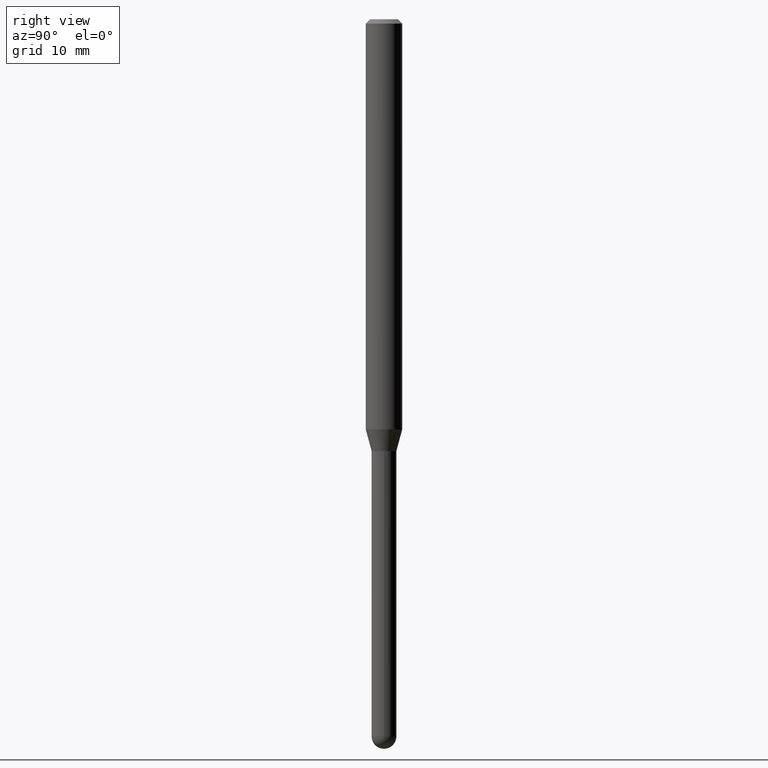
[diagram: clean part render]
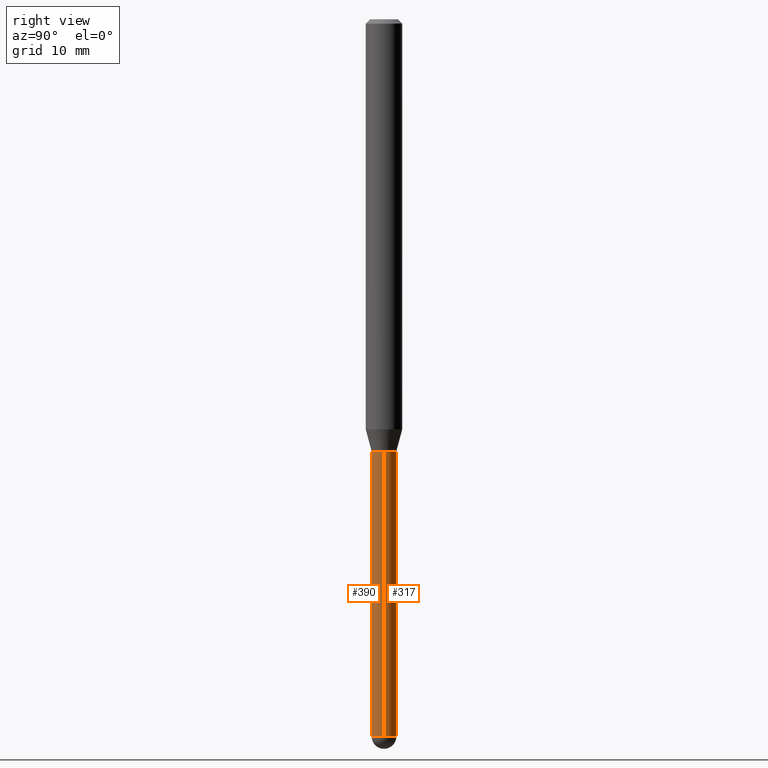
[diagram: same view with one multi-face feature highlighted, each face labeled with its STEP entity id]
A machine part, right view. The highlighted faces form ONE feature: a constant-radius fillet chain: 2 tangent blend faces with common blend radius 1.0795 mm. The faces share edges in the B-rep.
Their STEP definitions:
[1] entity #390 (Cylinder):
#2 = EDGE_CURVE ( 'NONE', #276, #94, #167, .T. ) ;
#9 = CARTESIAN_POINT ( 'NONE',  ( 0.04250000000000000999, -2.967759138016664042E-16, 2.072375129713273202E-30 ) ) ;
#11 = DIRECTION ( 'NONE',  ( -2.445468806185136597E-29, 3.491481338843145583E-15, 1.000000000000000000 ) ) ;
#12 = ORIENTED_EDGE ( 'NONE', *, *, #316, .T. ) ;
#33 = CIRCLE ( 'NONE', #144, 0.04250000000000000999 ) ;
#35 = CARTESIAN_POINT ( 'NONE',  ( 3.619293833154002365E-29, -5.167392381487854879E-15, -1.479999999999999982 ) ) ;
#73 = CARTESIAN_POINT ( 'NONE',  ( 0.04250000000000000999, -7.170629799649109504E-15, -2.457500000000000018 ) ) ;
#81 = VECTOR ( 'NONE', #131, 39.37007874015748143 ) ;
#90 = FACE_OUTER_BOUND ( 'NONE', #191, .T. ) ;
#94 = VERTEX_POINT ( 'NONE', #322 ) ;
#100 = DIRECTION ( 'NONE',  ( -2.445468806185136877E-29, 3.491481338843145188E-15, 1.000000000000000000 ) ) ;
#109 = EDGE_CURVE ( 'NONE', #94, #396, #123, .T. ) ;
#123 = CIRCLE ( 'NONE', #151, 0.04249999999999999611 ) ;
#131 = DIRECTION ( 'NONE',  ( -2.445468806185136877E-29, 3.491481338843145188E-15, 1.000000000000000000 ) ) ;
#138 = DIRECTION ( 'NONE',  ( -2.445468806185136597E-29, 3.491481338843145583E-15, 1.000000000000000000 ) ) ;
#140 = ORIENTED_EDGE ( 'NONE', *, *, #2, .F. ) ;
#144 = AXIS2_PLACEMENT_3D ( 'NONE', #491, #138, #179 ) ;
#145 = VERTEX_POINT ( 'NONE', #73 ) ;
#151 = AXIS2_PLACEMENT_3D ( 'NONE', #35, #159, #199 ) ;
#159 = DIRECTION ( 'NONE',  ( -2.445468806185136597E-29, 3.491481338843145583E-15, 1.000000000000000000 ) ) ;
#167 = LINE ( 'NONE', #477, #195 ) ;
#175 = CARTESIAN_POINT ( 'NONE',  ( -3.019806626979823514E-16, -0.04250000000000855871, -2.457500000000000018 ) ) ;
#176 = CARTESIAN_POINT ( 'NONE',  ( 0.04249999999999999611, -5.464168295289522318E-15, -1.479999999999999982 ) ) ;
#179 = DIRECTION ( 'NONE',  ( 1.000000000000000000, -6.982962677686273810E-15, 0.000000000000000000 ) ) ;
#191 = EDGE_LOOP ( 'NONE', ( #140, #378, #343, #12, #411 ) ) ;
#195 = VECTOR ( 'NONE', #100, 39.37007874015748143 ) ;
#199 = DIRECTION ( 'NONE',  ( 1.000000000000000000, -6.982962677686276177E-15, 0.000000000000000000 ) ) ;
#215 = CARTESIAN_POINT ( 'NONE',  ( 6.009739591199973545E-29, -8.580315390207031617E-15, -2.457500000000000018 ) ) ;
#219 = CARTESIAN_POINT ( 'NONE',  ( 0.000000000000000000, 0.000000000000000000, 0.000000000000000000 ) ) ;
#226 = DIRECTION ( 'NONE',  ( 1.000000000000000000, -6.982962677686266711E-15, 4.876176775795935793E-29 ) ) ;
#276 = VERTEX_POINT ( 'NONE', #325 ) ;
#298 = LINE ( 'NONE', #9, #81 ) ;
#308 = AXIS2_PLACEMENT_3D ( 'NONE', #215, #481, #374 ) ;
#316 = EDGE_CURVE ( 'NONE', #145, #396, #298, .T. ) ;
#322 = CARTESIAN_POINT ( 'NONE',  ( -0.04249999999999999611, -6.571873223149400401E-15, -1.479999999999999982 ) ) ;
#325 = CARTESIAN_POINT ( 'NONE',  ( -0.04250000000000000999, -6.571873223149400401E-15, -2.457500000000000018 ) ) ;
#343 = ORIENTED_EDGE ( 'NONE', *, *, #373, .T. ) ;
#346 = AXIS2_PLACEMENT_3D ( 'NONE', #219, #11, #226 ) ;
#368 = CYLINDRICAL_SURFACE ( 'NONE', #346, 0.04250000000000000999 ) ;
#373 = EDGE_CURVE ( 'NONE', #418, #145, #445, .T. ) ;
#374 = DIRECTION ( 'NONE',  ( 1.000000000000000000, -6.982962677686273810E-15, 0.000000000000000000 ) ) ;
#378 = ORIENTED_EDGE ( 'NONE', *, *, #431, .T. ) ;
#390 = ADVANCED_FACE ( 'NONE', ( #90 ), #368, .T. ) ;
#396 = VERTEX_POINT ( 'NONE', #176 ) ;
#411 = ORIENTED_EDGE ( 'NONE', *, *, #109, .F. ) ;
#418 = VERTEX_POINT ( 'NONE', #175 ) ;
#431 = EDGE_CURVE ( 'NONE', #276, #418, #33, .T. ) ;
#445 = CIRCLE ( 'NONE', #308, 0.04250000000000000999 ) ;
#477 = CARTESIAN_POINT ( 'NONE',  ( -0.04250000000000000999, 3.019806626980426500E-16, -2.090547413358335560E-30 ) ) ;
#481 = DIRECTION ( 'NONE',  ( -2.445468806185136597E-29, 3.491481338843145583E-15, 1.000000000000000000 ) ) ;
#491 = CARTESIAN_POINT ( 'NONE',  ( 6.009739591199973545E-29, -8.580315390207031617E-15, -2.457500000000000018 ) ) ;
[2] entity #317 (Cylinder):
#2 = EDGE_CURVE ( 'NONE', #276, #94, #167, .T. ) ;
#7 = AXIS2_PLACEMENT_3D ( 'NONE', #306, #487, #453 ) ;
#9 = CARTESIAN_POINT ( 'NONE',  ( 0.04250000000000000999, -2.967759138016664042E-16, 2.072375129713273202E-30 ) ) ;
#16 = EDGE_CURVE ( 'NONE', #396, #94, #508, .T. ) ;
#26 = EDGE_CURVE ( 'NONE', #370, #276, #463, .T. ) ;
#39 = ORIENTED_EDGE ( 'NONE', *, *, #16, .F. ) ;
#43 = DIRECTION ( 'NONE',  ( -2.445468806185136597E-29, 3.491481338843145583E-15, 1.000000000000000000 ) ) ;
#58 = ORIENTED_EDGE ( 'NONE', *, *, #316, .F. ) ;
#65 = ORIENTED_EDGE ( 'NONE', *, *, #2, .T. ) ;
#73 = CARTESIAN_POINT ( 'NONE',  ( 0.04250000000000000999, -7.170629799649109504E-15, -2.457500000000000018 ) ) ;
#81 = VECTOR ( 'NONE', #131, 39.37007874015748143 ) ;
#84 = DIRECTION ( 'NONE',  ( -2.445468806185136597E-29, 3.491481338843145583E-15, 1.000000000000000000 ) ) ;
#94 = VERTEX_POINT ( 'NONE', #322 ) ;
#100 = DIRECTION ( 'NONE',  ( -2.445468806185136877E-29, 3.491481338843145188E-15, 1.000000000000000000 ) ) ;
#104 = CIRCLE ( 'NONE', #7, 0.04250000000000000999 ) ;
#108 = ORIENTED_EDGE ( 'NONE', *, *, #437, .T. ) ;
#127 = CARTESIAN_POINT ( 'NONE',  ( 6.009739591199973545E-29, -8.580315390207031617E-15, -2.457500000000000018 ) ) ;
#131 = DIRECTION ( 'NONE',  ( -2.445468806185136877E-29, 3.491481338843145188E-15, 1.000000000000000000 ) ) ;
#135 = DIRECTION ( 'NONE',  ( -2.445468806185136597E-29, 3.491481338843145583E-15, 1.000000000000000000 ) ) ;
#145 = VERTEX_POINT ( 'NONE', #73 ) ;
#167 = LINE ( 'NONE', #477, #195 ) ;
#176 = CARTESIAN_POINT ( 'NONE',  ( 0.04249999999999999611, -5.464168295289522318E-15, -1.479999999999999982 ) ) ;
#195 = VECTOR ( 'NONE', #100, 39.37007874015748143 ) ;
#213 = DIRECTION ( 'NONE',  ( 1.000000000000000000, -6.982962677686266711E-15, 4.876176775795935793E-29 ) ) ;
#224 = CARTESIAN_POINT ( 'NONE',  ( 2.967759138017263083E-16, 0.04249999999999140576, -2.457500000000000462 ) ) ;
#229 = EDGE_LOOP ( 'NONE', ( #452, #65, #39, #58, #108 ) ) ;
#246 = CARTESIAN_POINT ( 'NONE',  ( 3.619293833154002365E-29, -5.167392381487854879E-15, -1.479999999999999982 ) ) ;
#260 = CYLINDRICAL_SURFACE ( 'NONE', #320, 0.04250000000000000999 ) ;
#261 = AXIS2_PLACEMENT_3D ( 'NONE', #127, #43, #496 ) ;
#276 = VERTEX_POINT ( 'NONE', #325 ) ;
#298 = LINE ( 'NONE', #9, #81 ) ;
#303 = CARTESIAN_POINT ( 'NONE',  ( 0.000000000000000000, 0.000000000000000000, 0.000000000000000000 ) ) ;
#306 = CARTESIAN_POINT ( 'NONE',  ( 6.009739591199973545E-29, -8.580315390207031617E-15, -2.457500000000000018 ) ) ;
#316 = EDGE_CURVE ( 'NONE', #145, #396, #298, .T. ) ;
#317 = ADVANCED_FACE ( 'NONE', ( #379 ), #260, .T. ) ;
#320 = AXIS2_PLACEMENT_3D ( 'NONE', #303, #135, #213 ) ;
#322 = CARTESIAN_POINT ( 'NONE',  ( -0.04249999999999999611, -6.571873223149400401E-15, -1.479999999999999982 ) ) ;
#325 = CARTESIAN_POINT ( 'NONE',  ( -0.04250000000000000999, -6.571873223149400401E-15, -2.457500000000000018 ) ) ;
#331 = DIRECTION ( 'NONE',  ( 1.000000000000000000, -6.982962677686276177E-15, 0.000000000000000000 ) ) ;
#370 = VERTEX_POINT ( 'NONE', #224 ) ;
#379 = FACE_OUTER_BOUND ( 'NONE', #229, .T. ) ;
#396 = VERTEX_POINT ( 'NONE', #176 ) ;
#413 = AXIS2_PLACEMENT_3D ( 'NONE', #246, #84, #331 ) ;
#437 = EDGE_CURVE ( 'NONE', #145, #370, #104, .T. ) ;
#452 = ORIENTED_EDGE ( 'NONE', *, *, #26, .T. ) ;
#453 = DIRECTION ( 'NONE',  ( 1.000000000000000000, -6.982962677686273810E-15, 0.000000000000000000 ) ) ;
#463 = CIRCLE ( 'NONE', #261, 0.04250000000000000999 ) ;
#477 = CARTESIAN_POINT ( 'NONE',  ( -0.04250000000000000999, 3.019806626980426500E-16, -2.090547413358335560E-30 ) ) ;
#487 = DIRECTION ( 'NONE',  ( -2.445468806185136597E-29, 3.491481338843145583E-15, 1.000000000000000000 ) ) ;
#496 = DIRECTION ( 'NONE',  ( 1.000000000000000000, -6.982962677686273810E-15, 0.000000000000000000 ) ) ;
#508 = CIRCLE ( 'NONE', #413, 0.04249999999999999611 ) ;